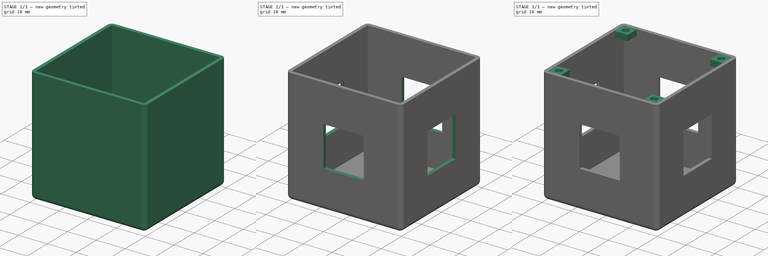
[diagram: build sequence overview — one tinted view per stage of 3, left to right]
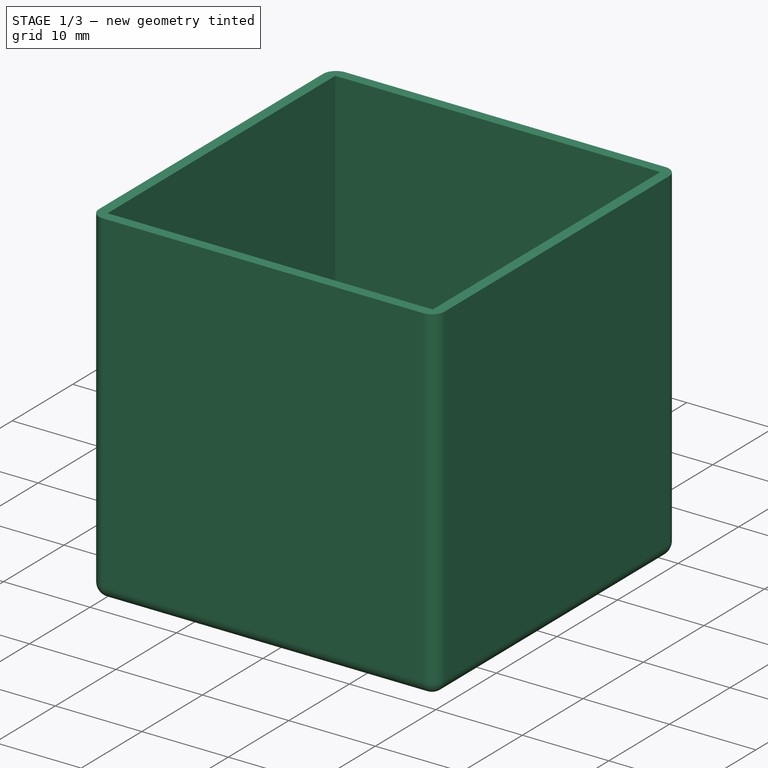
[diagram: stage 1 of 3 — iso view after this stage's code; geometry added in this stage tinted green]
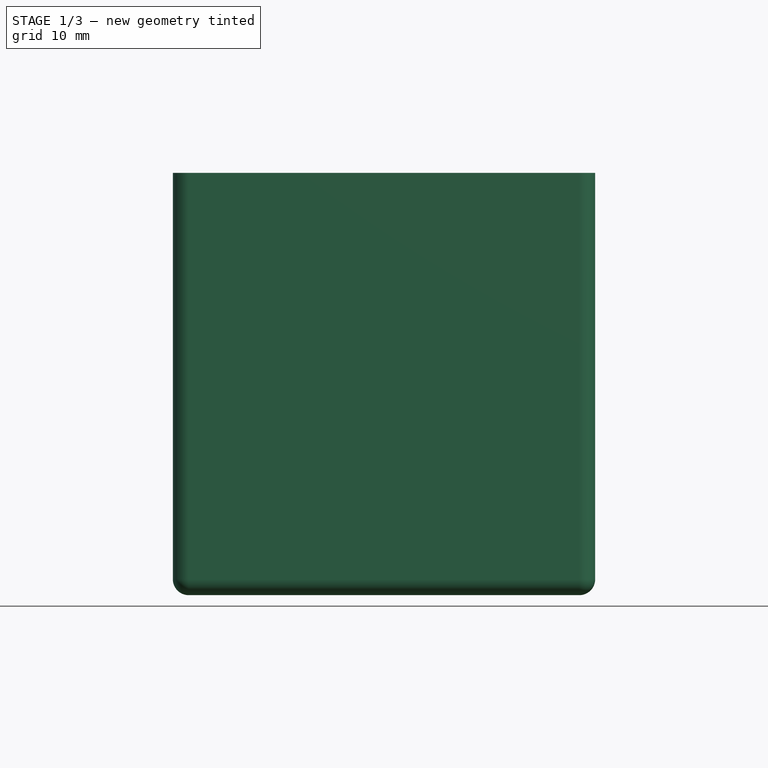
[diagram: stage 1 of 3 — front view after this stage's code; geometry added in this stage tinted green]
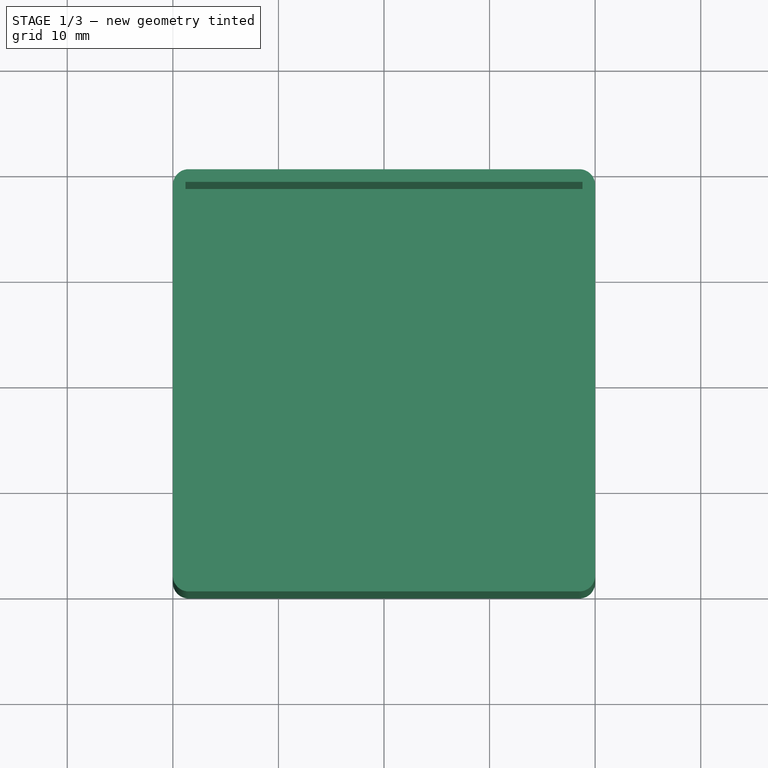
[diagram: stage 1 of 3 — top view after this stage's code; geometry added in this stage tinted green]
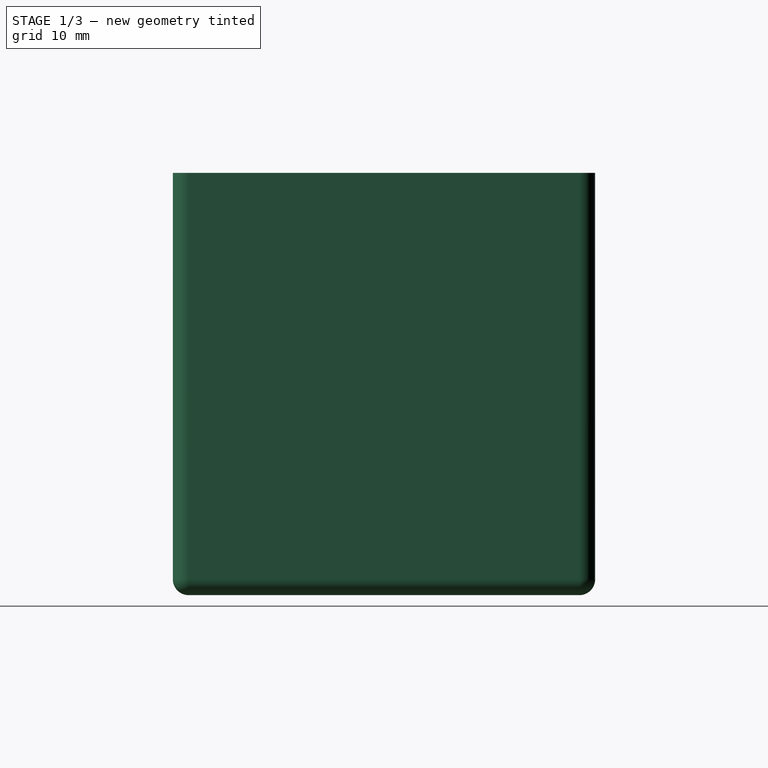
[diagram: stage 1 of 3 — right view after this stage's code; geometry added in this stage tinted green]
FCSTD DOCUMENT  (FreeCAD 1.0R39109 (Git))
Label: bbk3_body
License: All rights reserved
LicenseURL: https://en.wikipedia.org/wiki/All_rights_reserved
objects: Sketcher::SketchObject×9, PartDesign::Pocket×5, PartDesign::Pad×2, Spreadsheet::Sheet×1, PartDesign::Fillet×1, PartDesign::Body×1
note: 43 computed .brp shape members not serialized (recipe doc carries the construction recipe); baked Part::Feature solids carry a one-line shape summary decoded from their .brp

FEATURE [Spreadsheet::Sheet] Spreadsheet  label="parameters"
  cells = A1='cube_size; B1(cube_size)=40; A2='cube_thickness; B2(cube_thickness)=1.2; A3='key_size; B3(key_size)=14; A4='corner_radius; B4(corner_radius)=1.5; A5='radius_screw; B5(radius_screw)=1.15; A6='screwcube_size; B6(screwcube_size)=4.5; A7='screwcube_height; B7(screwcube_height)=2; A8='distance_screwcube; B8(distance_screwcube)=1.3
FEATURE [Sketcher::SketchObject] Sketch
  ArcFitTolerance = 1e-06
  AttachmentSupport = -> [XY_Plane]
  FullyConstrained = true
  MakeInternals = false
  MapMode = 5
  expr: Constraints[20] = <<parameters>>.corner_radius
  expr: Constraints[21] = <<parameters>>.cube_size
  expr: Constraints[22] = <<parameters>>.cube_size
  sketch-geometry (10):
    g0: LineSegment StartX=-2e-16 StartY=1.5 StartZ=0 EndX=-2e-16 EndY=38.5 EndZ=0
    g1: LineSegment StartX=-1.5 StartY=40 StartZ=0 EndX=-38.5 EndY=40 EndZ=0
    g2: LineSegment StartX=-40 StartY=38.5 StartZ=0 EndX=-40 EndY=1.5 EndZ=0
    g3: LineSegment StartX=-38.5 StartY=2.4e-15 StartZ=0 EndX=-1.5 EndY=2.4e-15 EndZ=0
    g4: ArcOfCircle CenterX=-1.5 CenterY=1.5 CenterZ=0 NormalX=0 NormalY=0 NormalZ=1 AngleXU=0 Radius=1.5 StartAngle=4.71239 EndAngle=6.28319
    g5: ArcOfCircle CenterX=-1.5 CenterY=38.5 CenterZ=0 NormalX=0 NormalY=0 NormalZ=1 AngleXU=0 Radius=1.5 StartAngle=-5.3e-15 EndAngle=1.5708
    g6: ArcOfCircle CenterX=-38.5 CenterY=38.5 CenterZ=0 NormalX=0 NormalY=0 NormalZ=1 AngleXU=0 Radius=1.5 StartAngle=1.5708 EndAngle=3.14159
    g7: ArcOfCircle CenterX=-38.5 CenterY=1.5 CenterZ=0 NormalX=0 NormalY=0 NormalZ=1 AngleXU=0 Radius=1.5 StartAngle=3.14159 EndAngle=4.71239
    g8: GeomPoint [constr] X=0 Y=0 Z=0
    g9: GeomPoint [constr] X=-40 Y=40 Z=0
  constraints (23):
    c: Tangent(g0,g4) = -1.5708
    c: Tangent(g0,g5) = -1.5708
    c: Tangent(g1,g5) = -1.5708
    c: Tangent(g1,g6) = -1.5708
    c: Tangent(g2,g6) = -1.5708
    c: Tangent(g2,g7) = -1.5708
    c: Tangent(g3,g7) = -1.5708
    c: Tangent(g3,g4) = -1.5708
    c: Vertical(g0)
    c: Vertical(g2)
    c: Horizontal(g1)
    c: Horizontal(g3)
    c: Equal(g4,g5)
    c: Equal(g5,g6)
    c: Equal(g6,g7)
    c: PointOnObject(g8,g0)
    c: PointOnObject(g8,g3)
    c: PointOnObject(g9,g1)
    c: PointOnObject(g9,g2)
    c: Coincident(g8,g-1)
    c: Radius(g7) = 1.5
    c: Distance(g0,g2) = 40
    c: Distance(g3,g1) = 40
FEATURE [PartDesign::Pad] Pad
  Direction = (0,0,1)
  Length = 40
  Length2 = 10
  Profile = -> Sketch
  ReferenceAxis = -> Sketch [N_Axis]
  Refine = true
  Suppressed = false
  Type = 0
  expr: Length = <<parameters>>.cube_size
FEATURE [PartDesign::Fillet] Fillet
  Base = -> Pad [Edge21]
  BaseFeature = -> Pad
  Radius = 1.5
  Refine = true
  SupportTransform = false
  Suppressed = false
  UseAllEdges = false
  expr: Radius = <<parameters>>.corner_radius
FEATURE [Sketcher::SketchObject] Sketch001
  ArcFitTolerance = 1e-06
  AttachmentSupport = -> [Fillet]
  ExternalGeometry = -> [Fillet]
  FullyConstrained = true
  MakeInternals = false
  MapMode = 5
  Placement = pos=(0,0,40) rot=(0,0,1;0rad)
  expr: Constraints[10] = <<parameters>>.cube_thickness
  expr: Constraints[11] = <<parameters>>.cube_thickness
  expr: Constraints[8] = <<parameters>>.cube_thickness
  expr: Constraints[9] = <<parameters>>.cube_thickness
  sketch-geometry (4):
    g0: LineSegment StartX=-1.2 StartY=1.2 StartZ=0 EndX=-1.2 EndY=38.8 EndZ=0
    g1: LineSegment StartX=-1.2 StartY=38.8 StartZ=0 EndX=-38.8 EndY=38.8 EndZ=0
    g2: LineSegment StartX=-38.8 StartY=38.8 StartZ=0 EndX=-38.8 EndY=1.2 EndZ=0
    g3: LineSegment StartX=-38.8 StartY=1.2 StartZ=0 EndX=-1.2 EndY=1.2 EndZ=0
  constraints (12):
    c: Coincident(g0,g1)
    c: Coincident(g1,g2)
    c: Coincident(g2,g3)
    c: Coincident(g3,g0)
    c: Vertical(g0)
    c: Vertical(g2)
    c: Horizontal(g1)
    c: Horizontal(g3)
    c: Distance(g0,g-2) = 1.2
    c: Distance(g-1,g3) = 1.2
    c: Distance(g1,g-3) = 1.2
    c: Distance(g-4,g2) = 1.2
FEATURE [PartDesign::Pocket] Pocket
  BaseFeature = -> Fillet
  Direction = (0,0,-1)
  Length = 38.8
  Length2 = 5
  Profile = -> Sketch001
  ReferenceAxis = -> Sketch001 [N_Axis]
  Refine = true
  Suppressed = false
  Type = 0
  expr: Length = <<parameters>>.cube_size - <<parameters>>.cube_thickness
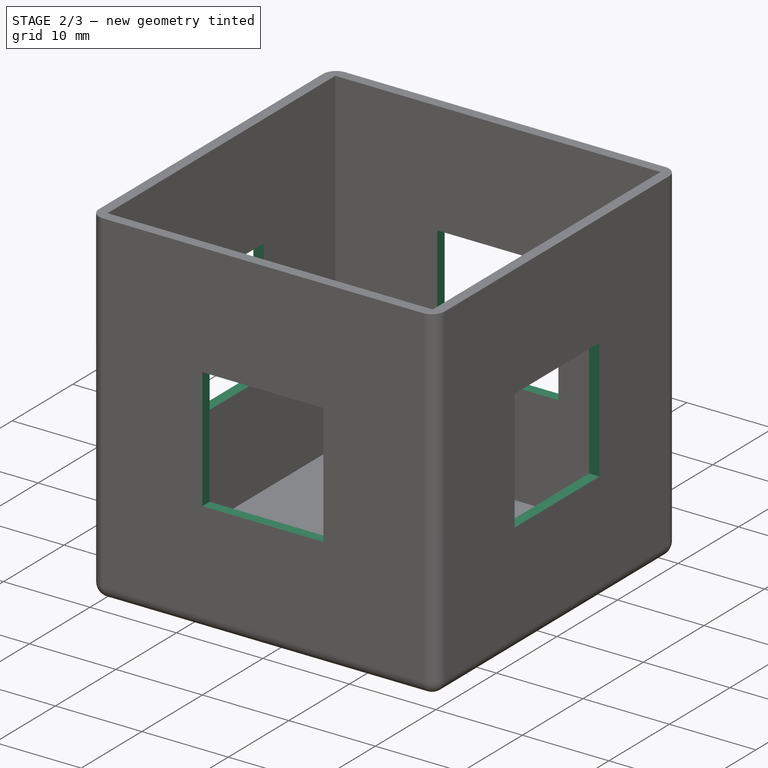
[diagram: stage 2 of 3 — iso view after this stage's code; geometry added in this stage tinted green]
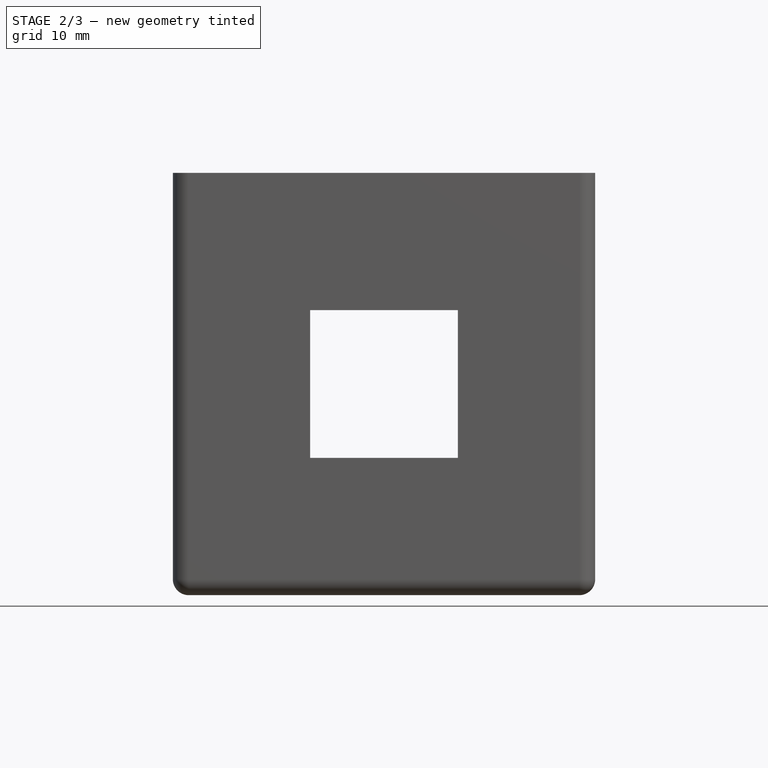
[diagram: stage 2 of 3 — front view after this stage's code; geometry added in this stage tinted green]
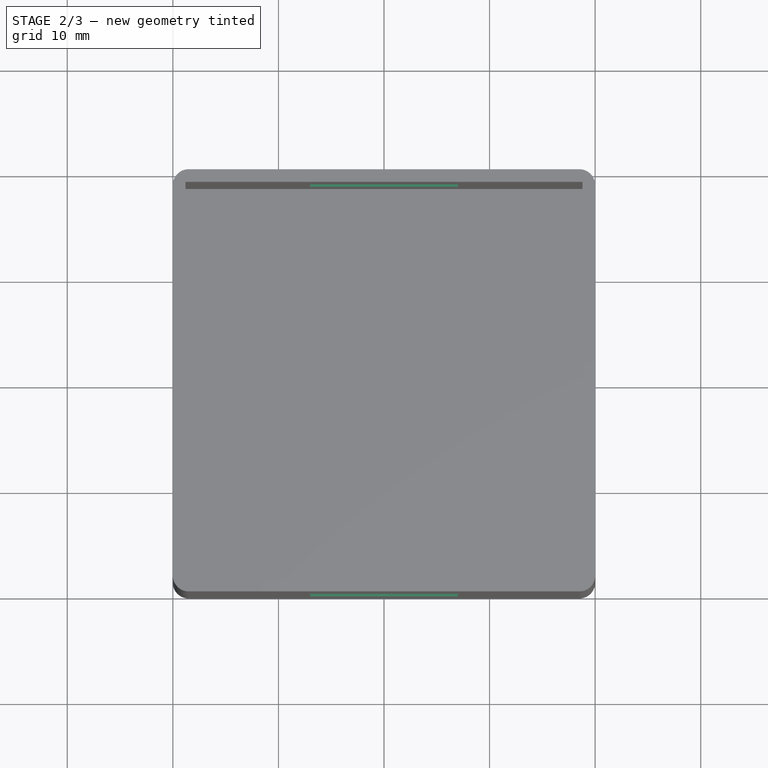
[diagram: stage 2 of 3 — top view after this stage's code; geometry added in this stage tinted green]
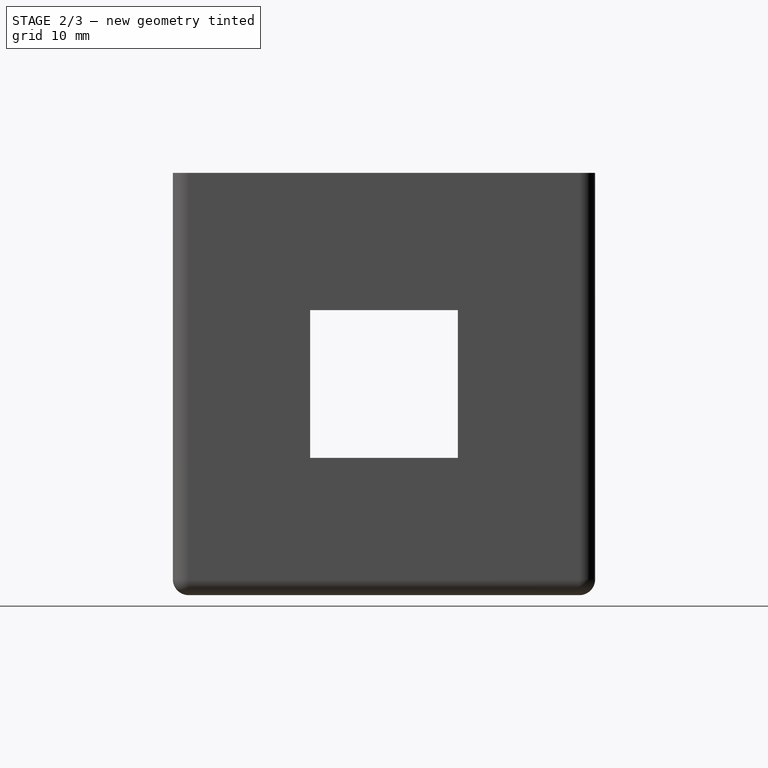
[diagram: stage 2 of 3 — right view after this stage's code; geometry added in this stage tinted green]
FEATURE [Sketcher::SketchObject] Sketch002
  ArcFitTolerance = 1e-06
  AttachmentSupport = -> [Pocket]
  ExternalGeometry = -> [Pocket]
  FullyConstrained = true
  MakeInternals = false
  MapMode = 5
  Placement = pos=(-2e-16,0,0) rot=(0.57735,0.57735,0.57735;2.0944rad)
  expr: Constraints[10] = (<<parameters>>.cube_size - <<parameters>>.key_size) / 2
  expr: Constraints[11] = (<<parameters>>.cube_size - <<parameters>>.key_size) / 2
  expr: Constraints[8] = <<parameters>>.key_size
  sketch-geometry (4):
    g0: LineSegment StartX=13 StartY=27 StartZ=0 EndX=13 EndY=13 EndZ=0
    g1: LineSegment StartX=13 StartY=13 StartZ=0 EndX=27 EndY=13 EndZ=0
    g2: LineSegment StartX=27 StartY=13 StartZ=0 EndX=27 EndY=27 EndZ=0
    g3: LineSegment StartX=27 StartY=27 StartZ=0 EndX=13 EndY=27 EndZ=0
  constraints (12):
    c: Coincident(g0,g1)
    c: Coincident(g1,g2)
    c: Coincident(g2,g3)
    c: Coincident(g3,g0)
    c: Vertical(g0)
    c: Vertical(g2)
    c: Horizontal(g1)
    c: Horizontal(g3)
    c: DistanceX(g3,g3) = 14
    c: Equal(g3,g2)
    c: Distance(g2,g-4) = 13
    c: Distance(g2,g-3) = 13
FEATURE [PartDesign::Pocket] Pocket001
  BaseFeature = -> Pocket
  Direction = (-1,0,0)
  Length = 5
  Length2 = 5
  Profile = -> Sketch002
  ReferenceAxis = -> Sketch002 [N_Axis]
  Refine = true
  Suppressed = false
  Type = 1
FEATURE [Sketcher::SketchObject] Sketch003
  ArcFitTolerance = 1e-06
  AttachmentSupport = -> [Pocket001]
  FullyConstrained = true
  MakeInternals = false
  MapMode = 5
  Placement = pos=(0,40,0) rot=(0,0.707107,0.707107;3.14159rad)
  expr: Constraints[10] = (<<parameters>>.cube_size - <<parameters>>.key_size) / 2
  expr: Constraints[11] = (<<parameters>>.cube_size - <<parameters>>.key_size) / 2
  expr: Constraints[8] = <<parameters>>.key_size
  sketch-geometry (4):
    g0: LineSegment StartX=13 StartY=27 StartZ=0 EndX=13 EndY=13 EndZ=0
    g1: LineSegment StartX=13 StartY=13 StartZ=0 EndX=27 EndY=13 EndZ=0
    g2: LineSegment StartX=27 StartY=13 StartZ=0 EndX=27 EndY=27 EndZ=0
    g3: LineSegment StartX=27 StartY=27 StartZ=0 EndX=13 EndY=27 EndZ=0
  constraints (12):
    c: Coincident(g0,g1)
    c: Coincident(g1,g2)
    c: Coincident(g2,g3)
    c: Coincident(g3,g0)
    c: Vertical(g0)
    c: Vertical(g2)
    c: Horizontal(g1)
    c: Horizontal(g3)
    c: DistanceX(g3,g3) = 14
    c: Equal(g2,g3)
    c: Distance(g0,g-1) = 13
    c: Distance(g0,g-2) = 13
FEATURE [PartDesign::Pocket] Pocket002
  BaseFeature = -> Pocket001
  Direction = (0,-1,2e-16)
  Length = 5
  Length2 = 5
  Profile = -> Sketch003
  ReferenceAxis = -> Sketch003 [N_Axis]
  Refine = true
  Suppressed = false
  Type = 1
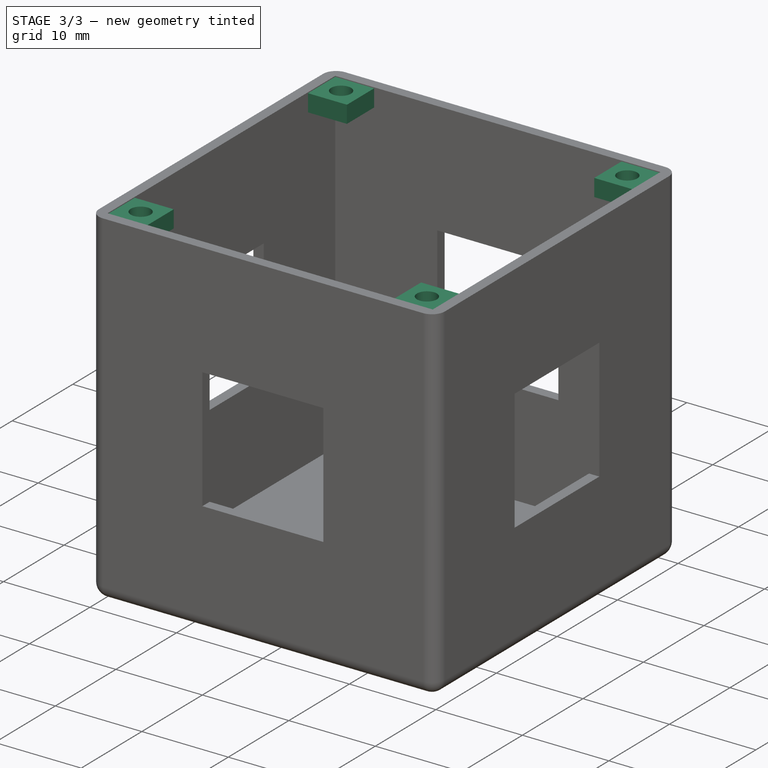
[diagram: stage 3 of 3 — iso view after this stage's code; geometry added in this stage tinted green]
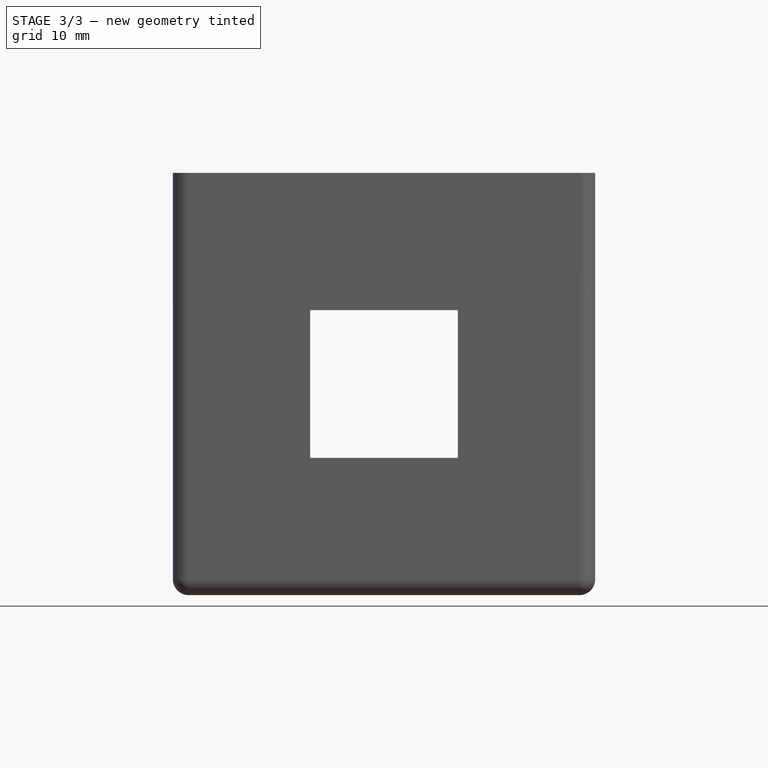
[diagram: stage 3 of 3 — front view after this stage's code; geometry added in this stage tinted green]
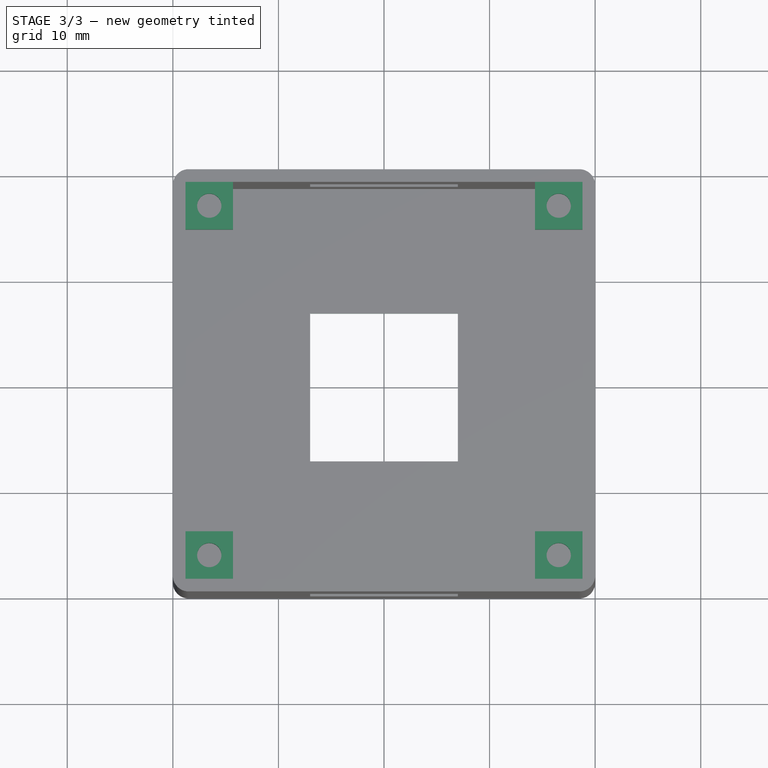
[diagram: stage 3 of 3 — top view after this stage's code; geometry added in this stage tinted green]
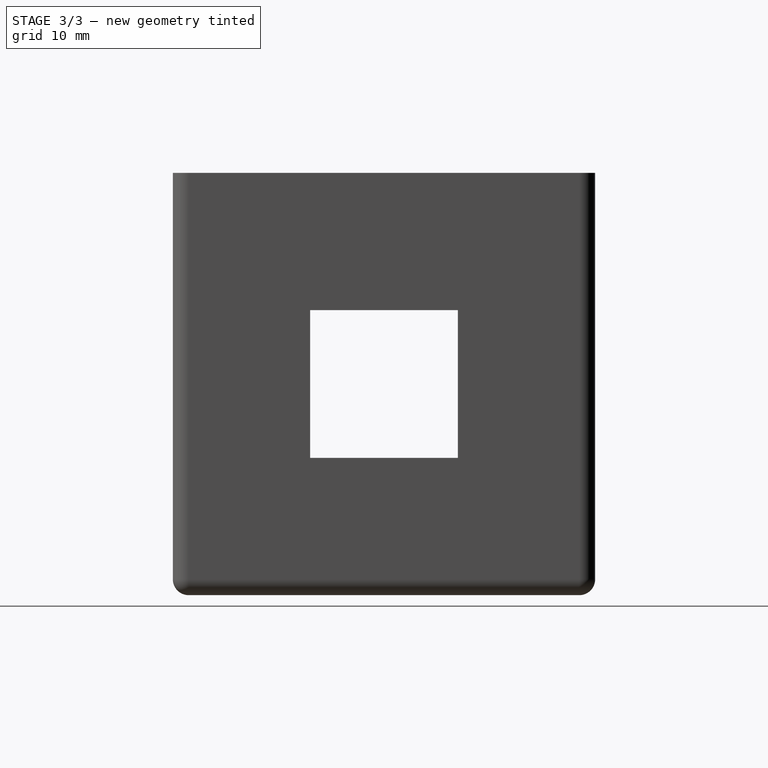
[diagram: stage 3 of 3 — right view after this stage's code; geometry added in this stage tinted green]
FEATURE [Sketcher::SketchObject] Sketch004
  ArcFitTolerance = 1e-06
  AttachmentSupport = -> [Pocket002]
  FullyConstrained = true
  MakeInternals = false
  MapMode = 5
  Placement = pos=(0,0,1.2) rot=(0,0,1;0rad)
  expr: Constraints[10] = (<<parameters>>.cube_size - <<parameters>>.key_size) / 2
  expr: Constraints[11] = (<<parameters>>.cube_size - <<parameters>>.key_size) / 2
  expr: Constraints[8] = <<parameters>>.key_size
  sketch-geometry (4):
    g0: LineSegment StartX=-27 StartY=27 StartZ=0 EndX=-27 EndY=13 EndZ=0
    g1: LineSegment StartX=-27 StartY=13 StartZ=0 EndX=-13 EndY=13 EndZ=0
    g2: LineSegment StartX=-13 StartY=13 StartZ=0 EndX=-13 EndY=27 EndZ=0
    g3: LineSegment StartX=-13 StartY=27 StartZ=0 EndX=-27 EndY=27 EndZ=0
  constraints (12):
    c: Coincident(g0,g1)
    c: Coincident(g1,g2)
    c: Coincident(g2,g3)
    c: Coincident(g3,g0)
    c: Vertical(g0)
    c: Vertical(g2)
    c: Horizontal(g1)
    c: Horizontal(g3)
    c: DistanceX(g3,g3) = 14
    c: Equal(g3,g2)
    c: Distance(g1,g-2) = 13
    c: Distance(g1,g-1) = 13
FEATURE [PartDesign::Pocket] Pocket003
  BaseFeature = -> Pocket002
  Direction = (0,0,-1)
  Length = 5
  Length2 = 5
  Profile = -> Sketch004
  ReferenceAxis = -> Sketch004 [N_Axis]
  Refine = true
  Suppressed = false
  Type = 0
FEATURE [Sketcher::SketchObject] Sketch005
  ArcFitTolerance = 1e-06
  AttachmentSupport = -> [Pocket003]
  FullyConstrained = true
  MakeInternals = false
  MapMode = 5
  Placement = pos=(0,1.2,0) rot=(0,0.707107,0.707107;3.14159rad)
FEATURE [Sketcher::SketchObject] Sketch006
  ArcFitTolerance = 1e-06
  AttachmentSupport = -> [Pocket003]
  FullyConstrained = true
  MakeInternals = false
  MapMode = 5
  Placement = pos=(0,1.2,0) rot=(0,0.707107,0.707107;3.14159rad)
FEATURE [Sketcher::SketchObject] Sketch007
  ArcFitTolerance = 1e-06
  AttachmentOffset = pos=(0,0,36.7) rot=(0,0,1;0rad)
  AttachmentSupport = -> [Pocket003]
  ExternalGeometry = -> [Pocket003]
  FullyConstrained = true
  MakeInternals = false
  MapMode = 5
  Placement = pos=(0,0,37.9) rot=(0,0,1;0rad)
  expr: .AttachmentOffset.Base.z = <<parameters>>.cube_size - <<parameters>>.distance_screwcube - <<parameters>>.screwcube_height
  expr: Constraints[36] = <<parameters>>.screwcube_size
  sketch-geometry (16):
    g0: LineSegment StartX=-38.8 StartY=38.8 StartZ=0 EndX=-38.8 EndY=34.3 EndZ=0
    g1: LineSegment StartX=-38.8 StartY=34.3 StartZ=0 EndX=-34.3 EndY=34.3 EndZ=0
    g2: LineSegment StartX=-34.3 StartY=34.3 StartZ=0 EndX=-34.3 EndY=38.8 EndZ=0
    g3: LineSegment StartX=-34.3 StartY=38.8 StartZ=0 EndX=-38.8 EndY=38.8 EndZ=0
    g4: LineSegment StartX=-1.2 StartY=38.8 StartZ=0 EndX=-5.7 EndY=38.8 EndZ=0
    g5: LineSegment StartX=-5.7 StartY=38.8 StartZ=0 EndX=-5.7 EndY=34.3 EndZ=0
    g6: LineSegment StartX=-5.7 StartY=34.3 StartZ=0 EndX=-1.2 EndY=34.3 EndZ=0
    g7: LineSegment StartX=-1.2 StartY=34.3 StartZ=0 EndX=-1.2 EndY=38.8 EndZ=0
    g8: LineSegment StartX=-1.2 StartY=1.2 StartZ=0 EndX=-1.2 EndY=5.7 EndZ=0
    g9: LineSegment StartX=-1.2 StartY=5.7 StartZ=0 EndX=-5.7 EndY=5.7 EndZ=0
    g10: LineSegment StartX=-5.7 StartY=5.7 StartZ=0 EndX=-5.7 EndY=1.2 EndZ=0
    g11: LineSegment StartX=-5.7 StartY=1.2 StartZ=0 EndX=-1.2 EndY=1.2 EndZ=0
    g12: LineSegment StartX=-38.8 StartY=1.2 StartZ=0 EndX=-34.3 EndY=1.2 EndZ=0
    g13: LineSegment StartX=-34.3 StartY=1.2 StartZ=0 EndX=-34.3 EndY=5.7 EndZ=0
    g14: LineSegment StartX=-34.3 StartY=5.7 StartZ=0 EndX=-38.8 EndY=5.7 EndZ=0
    g15: LineSegment StartX=-38.8 StartY=5.7 StartZ=0 EndX=-38.8 EndY=1.2 EndZ=0
  constraints (44):
    c: Coincident(g0,g1)
    c: Coincident(g1,g2)
    c: Coincident(g2,g3)
    c: Coincident(g3,g0)
    c: Vertical(g0)
    c: Vertical(g2)
    c: Horizontal(g1)
    c: Horizontal(g3)
    c: Coincident(g0,g-6)
    c: Coincident(g4,g5)
    c: Coincident(g5,g6)
    c: Coincident(g6,g7)
    c: Coincident(g7,g4)
    c: Horizontal(g4)
    c: Horizontal(g6)
    c: Vertical(g5)
    c: Vertical(g7)
    c: Coincident(g4,g-4)
    c: Coincident(g8,g9)
    c: Coincident(g9,g10)
    c: Coincident(g10,g11)
    c: Coincident(g11,g8)
    c: Vertical(g8)
    c: Vertical(g10)
    c: Horizontal(g9)
    c: Horizontal(g11)
    c: Coincident(g8,g-5)
    c: Coincident(g12,g13)
    c: Coincident(g13,g14)
    c: Coincident(g14,g15)
    c: Coincident(g15,g12)
    c: Horizontal(g12)
    c: Horizontal(g14)
    c: Vertical(g13)
    c: Vertical(g15)
    c: Coincident(g12,g-6)
    c: DistanceY(g2,g2) = 4.5
    c: Equal(g2,g1)
    c: Equal(g2,g5)
    c: Equal(g5,g6)
    c: Equal(g14,g13)
    c: Equal(g9,g10)
    c: Equal(g14,g2)
    c: Equal(g2,g9)
FEATURE [PartDesign::Pad] Pad001
  BaseFeature = -> Pocket003
  Direction = (0,0,1)
  Length = 2
  Length2 = 10
  Profile = -> Sketch007
  ReferenceAxis = -> Sketch007 [N_Axis]
  Refine = true
  Suppressed = false
  Type = 0
  expr: Length = <<parameters>>.screwcube_height
FEATURE [Sketcher::SketchObject] Sketch008
  ArcFitTolerance = 1e-06
  AttachmentSupport = -> [Pad001]
  ExternalGeometry = -> [Pad001]
  FullyConstrained = true
  MakeInternals = false
  MapMode = 5
  Placement = pos=(0,0,39.9) rot=(0,0,1;0rad)
  expr: Constraints[0] = <<parameters>>.radius_screw
  sketch-geometry (12):
    g0: Circle CenterX=-3.45 CenterY=3.45 CenterZ=0 NormalX=0 NormalY=0 NormalZ=1 AngleXU=0 Radius=1.15
    g1: Circle CenterX=-36.55 CenterY=3.45 CenterZ=0 NormalX=0 NormalY=0 NormalZ=1 AngleXU=0 Radius=1.15
    g2: Circle CenterX=-36.55 CenterY=36.55 CenterZ=0 NormalX=0 NormalY=0 NormalZ=1 AngleXU=0 Radius=1.15
    g3: Circle CenterX=-3.45 CenterY=36.55 CenterZ=0 NormalX=0 NormalY=0 NormalZ=1 AngleXU=0 Radius=1.15
    g4: LineSegment [constr] StartX=-3.45 StartY=36.55 StartZ=0 EndX=-1.2 EndY=38.8 EndZ=0
    g5: LineSegment [constr] StartX=-3.45 StartY=36.55 StartZ=0 EndX=-5.7 EndY=34.3 EndZ=0
    g6: LineSegment [constr] StartX=-36.55 StartY=36.55 StartZ=0 EndX=-38.8 EndY=38.8 EndZ=0
    g7: LineSegment [constr] StartX=-36.55 StartY=36.55 StartZ=0 EndX=-34.3 EndY=34.3 EndZ=0
    g8: LineSegment [constr] StartX=-36.55 StartY=3.45 StartZ=0 EndX=-34.3 EndY=5.7 EndZ=0
    g9: LineSegment [constr] StartX=-36.55 StartY=3.45 StartZ=0 EndX=-38.8 EndY=1.2 EndZ=0
    g10: LineSegment [constr] StartX=-3.45 StartY=3.45 StartZ=0 EndX=-5.7 EndY=5.7 EndZ=0
    g11: LineSegment [constr] StartX=-3.45 StartY=3.45 StartZ=0 EndX=-1.2 EndY=1.2 EndZ=0
  constraints (28):
    c: Radius(g0) = 1.15
    c: Radius(g1) = 1.15
    c: Radius(g2) = 1.15
    c: Radius(g3) = 1.15
    c: Coincident(g4,g3)
    c: Coincident(g4,g-4)
    c: Coincident(g5,g3)
    c: Coincident(g5,g-3)
    c: Equal(g5,g4)
    c: Parallel(g4,g5)
    c: Coincident(g6,g2)
    c: Coincident(g6,g-7)
    c: Coincident(g7,g2)
    c: Coincident(g7,g-8)
    c: Coincident(g8,g1)
    c: Coincident(g8,g-6)
    c: Coincident(g9,g1)
    c: Coincident(g9,g-7)
    c: Coincident(g10,g0)
    c: Coincident(g10,g-5)
    c: Coincident(g11,g0)
    c: Coincident(g11,g-4)
    c: Equal(g11,g10)
    c: Equal(g8,g9)
    c: Equal(g7,g6)
    c: Parallel(g6,g7)
    c: Parallel(g8,g9)
    c: Parallel(g10,g11)
FEATURE [PartDesign::Pocket] Pocket004
  BaseFeature = -> Pad001
  Direction = (0,0,-1)
  Length = 2
  Length2 = 5
  Profile = -> Sketch008
  ReferenceAxis = -> Sketch008 [N_Axis]
  Refine = true
  Suppressed = false
  Type = 0
  expr: Length = <<parameters>>.screwcube_height
FEATURE [PartDesign::Body] Body  label="Corps"
  AllowCompound = false
  Group = -> [Sketch,Pad,Fillet,Sketch001,Pocket,Sketch002,Pocket001,Sketch003,Pocket002,Sketch004,Pocket003,Sketch005,Sketch006,Sketch007,Pad001,Sketch008,Pocket004]
  Origin = -> Origin
  Tip = -> Pocket004
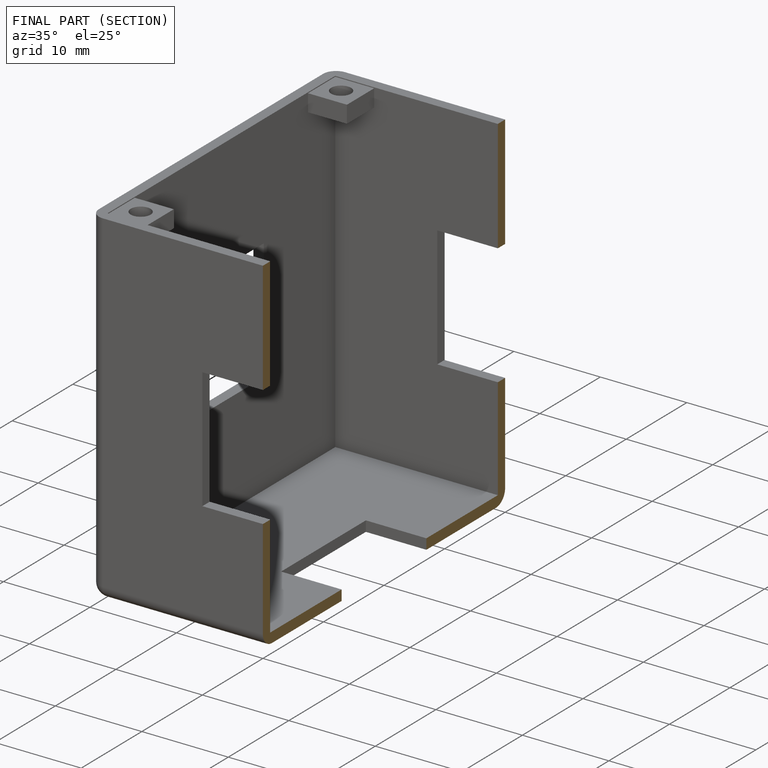
[diagram: finished part — half-section view (interior)]
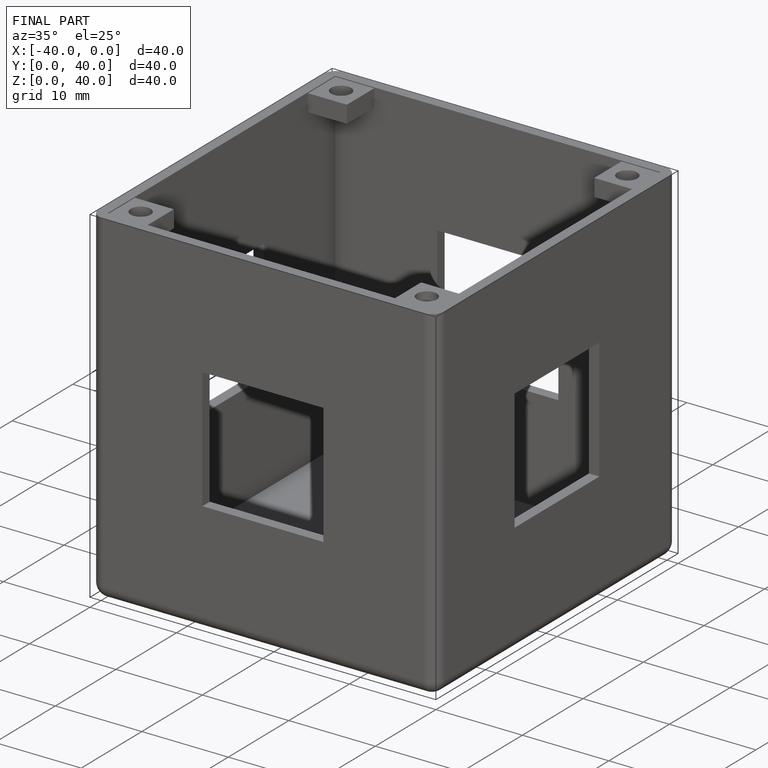
[diagram: finished part — iso view with bounding-box wireframe]
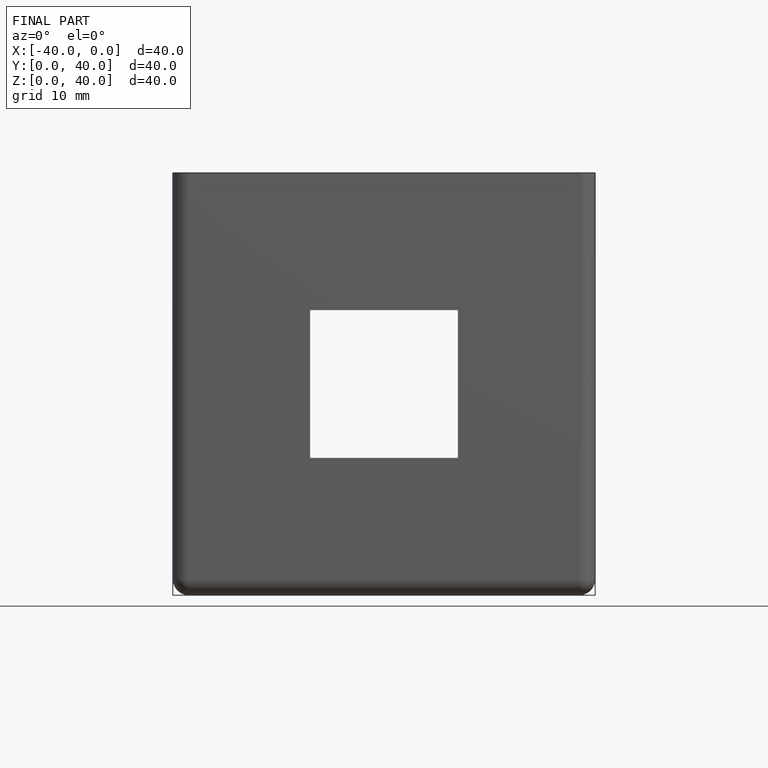
[diagram: finished part — front view with bounding-box wireframe]
